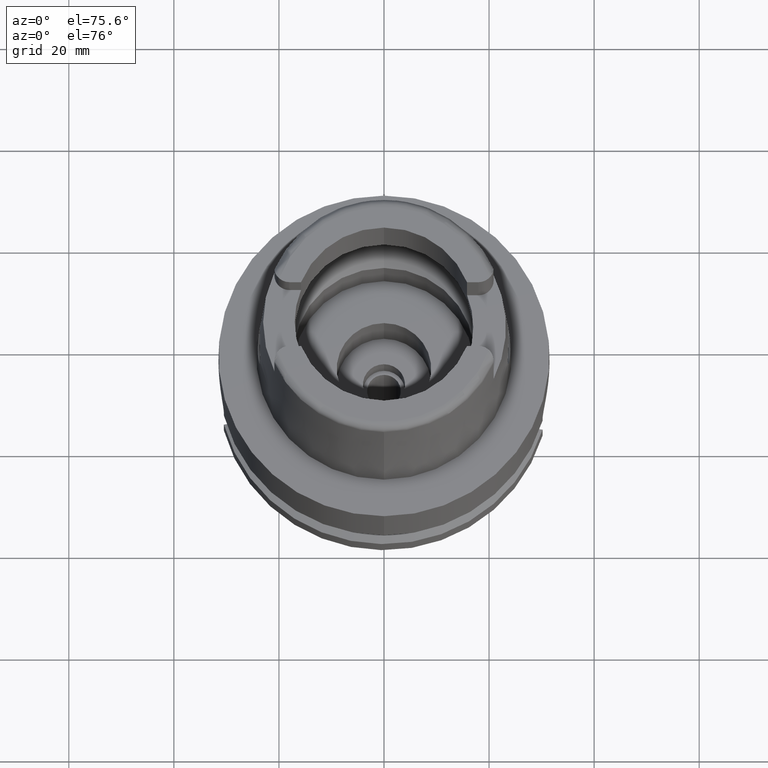
[diagram: clean part render]
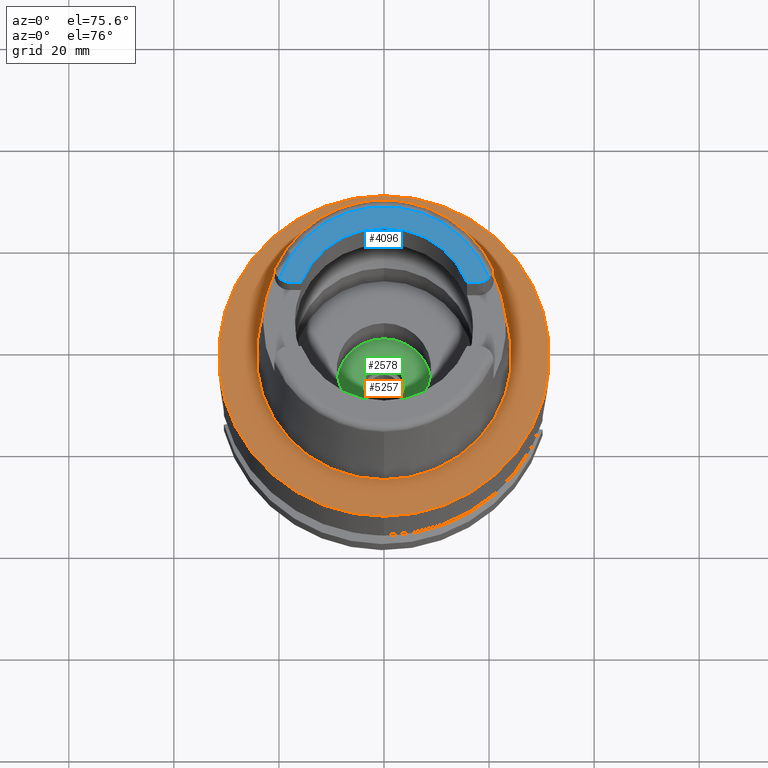
[diagram: same view with three faces highlighted in distinct colors, each labeled with its STEP entity id]
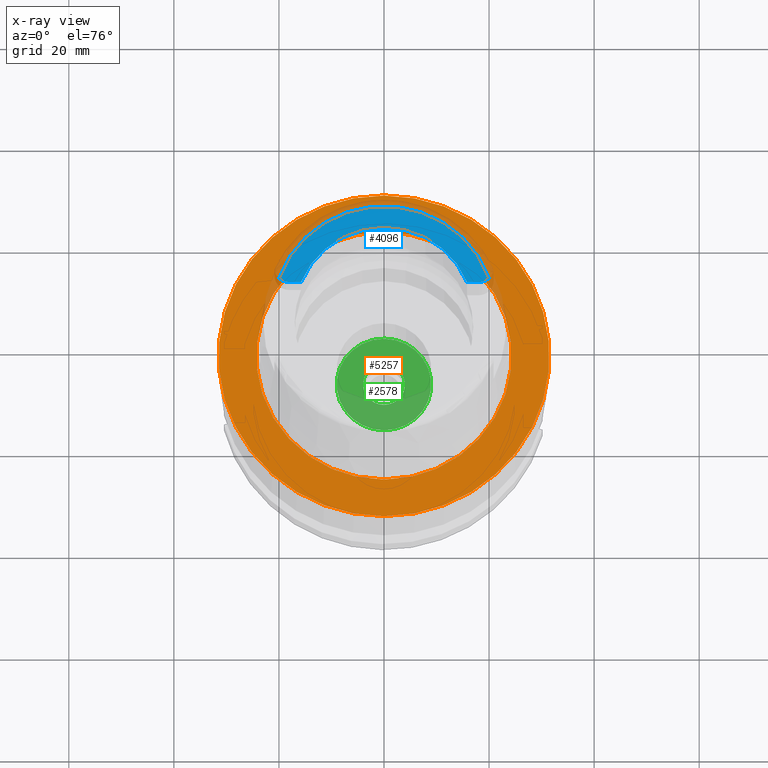
[diagram: x-ray of the same camera — body ghosted, the three highlighted faces saturated]
A machine part, auxiliary view with three faces highlighted in distinct colors.
The next image is the same camera in x-ray (body ghosted, the three faces saturated) — at least one of them is partly hidden behind the body in this view.
Their STEP definitions:

[orange] entity #5257 — the highlighted planar face has unit normal (0, 0, 1).
#267 = EDGE_CURVE ( 'NONE', #4974, #5223, #1328, .T. ) ;
#457 = DIRECTION ( 'NONE',  ( 1.000000000000000000, 0.0000000000000000000, 0.0000000000000000000 ) ) ;
#539 = CARTESIAN_POINT ( 'NONE',  ( 0.0000000000000000000, 0.0000000000000000000, -1.534772309241999973E-12 ) ) ;
#643 = CARTESIAN_POINT ( 'NONE',  ( 0.0000000000000000000, 0.0000000000000000000, -8.526512829120999020E-14 ) ) ;
#799 = CARTESIAN_POINT ( 'NONE',  ( 0.0000000000000000000, 31.50000000000000000, -2.842170943039999687E-14 ) ) ;
#809 = VERTEX_POINT ( 'NONE', #2963 ) ;
#1237 = CARTESIAN_POINT ( 'NONE',  ( 0.0000000000000000000, -31.50000000000000000, -8.526512829120999020E-14 ) ) ;
#1328 = CIRCLE ( 'NONE', #3477, 31.50000000000000000 ) ;
#1681 = ORIENTED_EDGE ( 'NONE', *, *, #3505, .F. ) ;
#1725 = DIRECTION ( 'NONE',  ( 0.0000000000000000000, 1.000000000000000000, 0.0000000000000000000 ) ) ;
#1851 = VERTEX_POINT ( 'NONE', #2541 ) ;
#1978 = AXIS2_PLACEMENT_3D ( 'NONE', #3338, #2180, #1725 ) ;
#2033 = ORIENTED_EDGE ( 'NONE', *, *, #267, .F. ) ;
#2111 = FACE_OUTER_BOUND ( 'NONE', #2906, .T. ) ;
#2112 = CIRCLE ( 'NONE', #4560, 24.31503482328999866 ) ;
#2137 = DIRECTION ( 'NONE',  ( 0.0000000000000000000, 0.0000000000000000000, -1.000000000000000000 ) ) ;
#2148 = EDGE_LOOP ( 'NONE', ( #3870, #3963 ) ) ;
#2169 = CARTESIAN_POINT ( 'NONE',  ( 0.0000000000000000000, 0.0000000000000000000, 0.0000000000000000000 ) ) ;
#2180 = DIRECTION ( 'NONE',  ( 0.0000000000000000000, 0.0000000000000000000, 1.000000000000000000 ) ) ;
#2333 = AXIS2_PLACEMENT_3D ( 'NONE', #3776, #2137, #3749 ) ;
#2541 = CARTESIAN_POINT ( 'NONE',  ( 0.0000000000000000000, 24.31503482328999866, -1.534772309241999973E-12 ) ) ;
#2906 = EDGE_LOOP ( 'NONE', ( #2033, #1681 ) ) ;
#2963 = CARTESIAN_POINT ( 'NONE',  ( 0.0000000000000000000, -24.31503482328999866, -8.704148513061000085E-13 ) ) ;
#3149 = CIRCLE ( 'NONE', #2333, 31.50000000000000000 ) ;
#3338 = CARTESIAN_POINT ( 'NONE',  ( 0.0000000000000000000, 0.0000000000000000000, -1.534772309241999973E-12 ) ) ;
#3434 = FACE_BOUND ( 'NONE', #2148, .T. ) ;
#3477 = AXIS2_PLACEMENT_3D ( 'NONE', #643, #4421, #3964 ) ;
#3505 = EDGE_CURVE ( 'NONE', #5223, #4974, #3149, .T. ) ;
#3547 = DIRECTION ( 'NONE',  ( 0.0000000000000000000, 0.0000000000000000000, 1.000000000000000000 ) ) ;
#3629 = AXIS2_PLACEMENT_3D ( 'NONE', #2169, #4300, #457 ) ;
#3749 = DIRECTION ( 'NONE',  ( 0.0000000000000000000, -1.000000000000000000, 0.0000000000000000000 ) ) ;
#3776 = CARTESIAN_POINT ( 'NONE',  ( 0.0000000000000000000, 0.0000000000000000000, -8.526512829120999020E-14 ) ) ;
#3870 = ORIENTED_EDGE ( 'NONE', *, *, #3924, .F. ) ;
#3924 = EDGE_CURVE ( 'NONE', #1851, #809, #4426, .T. ) ;
#3963 = ORIENTED_EDGE ( 'NONE', *, *, #4673, .F. ) ;
#3964 = DIRECTION ( 'NONE',  ( 0.0000000000000000000, 1.000000000000000000, 0.0000000000000000000 ) ) ;
#4300 = DIRECTION ( 'NONE',  ( 0.0000000000000000000, 0.0000000000000000000, 1.000000000000000000 ) ) ;
#4326 = PLANE ( 'NONE',  #3629 ) ;
#4421 = DIRECTION ( 'NONE',  ( 0.0000000000000000000, 0.0000000000000000000, -1.000000000000000000 ) ) ;
#4426 = CIRCLE ( 'NONE', #1978, 24.31503482328999866 ) ;
#4560 = AXIS2_PLACEMENT_3D ( 'NONE', #539, #3547, #5269 ) ;
#4673 = EDGE_CURVE ( 'NONE', #809, #1851, #2112, .T. ) ;
#4974 = VERTEX_POINT ( 'NONE', #799 ) ;
#5223 = VERTEX_POINT ( 'NONE', #1237 ) ;
#5257 = ADVANCED_FACE ( 'NONE', ( #2111, #3434 ), #4326, .T. ) ;
#5269 = DIRECTION ( 'NONE',  ( 0.0000000000000000000, -1.000000000000000000, 0.0000000000000000000 ) ) ;

[blue] entity #4096 — the highlighted planar face has unit normal (0, 0, 1).
#13 = EDGE_LOOP ( 'NONE', ( #3694, #1769, #2640, #1125, #2549, #4825, #635 ) ) ;
#23 = CARTESIAN_POINT ( 'NONE',  ( 15.80149043602999903, 6.270000000000000462, 32.00000000000000000 ) ) ;
#273 = VERTEX_POINT ( 'NONE', #3110 ) ;
#563 = EDGE_CURVE ( 'NONE', #3929, #2590, #3487, .T. ) ;
#635 = ORIENTED_EDGE ( 'NONE', *, *, #3236, .T. ) ;
#677 = DIRECTION ( 'NONE',  ( 0.9294994374136111848, 0.3688235294118045182, 0.0000000000000000000 ) ) ;
#711 = AXIS2_PLACEMENT_3D ( 'NONE', #2910, #4635, #677 ) ;
#728 = CIRCLE ( 'NONE', #3046, 17.00000000000000000 ) ;
#815 = CARTESIAN_POINT ( 'NONE',  ( 0.0000000000000000000, 0.0000000000000000000, 32.00000000000000000 ) ) ;
#892 = DIRECTION ( 'NONE',  ( 1.000000000000000000, 8.644330667353000255E-14, 0.0000000000000000000 ) ) ;
#1086 = CARTESIAN_POINT ( 'NONE',  ( 17.98999999999999844, 9.150000000000000355, 32.00000000000000000 ) ) ;
#1125 = ORIENTED_EDGE ( 'NONE', *, *, #1459, .F. ) ;
#1242 = DIRECTION ( 'NONE',  ( 1.000000000000000000, 0.0000000000000000000, 0.0000000000000000000 ) ) ;
#1304 = CIRCLE ( 'NONE', #2907, 2.880000000000000782 ) ;
#1313 = CARTESIAN_POINT ( 'NONE',  ( 17.98999999999999844, 6.270000000000000462, 32.00000000000000000 ) ) ;
#1380 = LINE ( 'NONE', #3083, #3685 ) ;
#1397 = DIRECTION ( 'NONE',  ( 0.0000000000000000000, 0.0000000000000000000, -1.000000000000000000 ) ) ;
#1459 = EDGE_CURVE ( 'NONE', #273, #4351, #4764, .T. ) ;
#1591 = CARTESIAN_POINT ( 'NONE',  ( 0.0000000000000000000, 0.0000000000000000000, 32.00000000000000000 ) ) ;
#1629 = CARTESIAN_POINT ( 'NONE',  ( 0.0000000000000000000, 0.0000000000000000000, 32.00000000000000000 ) ) ;
#1689 = PLANE ( 'NONE',  #4552 ) ;
#1691 = CARTESIAN_POINT ( 'NONE',  ( -17.98999999999999844, 6.270000000000000462, 32.00000000000000000 ) ) ;
#1696 = DIRECTION ( 'NONE',  ( 0.0000000000000000000, 0.0000000000000000000, 1.000000000000000000 ) ) ;
#1707 = EDGE_CURVE ( 'NONE', #2590, #5427, #728, .T. ) ;
#1722 = VERTEX_POINT ( 'NONE', #3735 ) ;
#1769 = ORIENTED_EDGE ( 'NONE', *, *, #563, .F. ) ;
#1784 = VECTOR ( 'NONE', #892, 1000.000000000000000 ) ;
#1863 = CARTESIAN_POINT ( 'NONE',  ( 0.0000000000000000000, 17.00000000000000000, 32.00000000000000000 ) ) ;
#2046 = EDGE_CURVE ( 'NONE', #3929, #4351, #1380, .T. ) ;
#2118 = DIRECTION ( 'NONE',  ( 0.0000000000000000000, 0.0000000000000000000, 1.000000000000000000 ) ) ;
#2302 = CARTESIAN_POINT ( 'NONE',  ( -15.80149043602999903, 6.270000000000000462, 32.00000000000000000 ) ) ;
#2351 = VERTEX_POINT ( 'NONE', #1691 ) ;
#2548 = AXIS2_PLACEMENT_3D ( 'NONE', #1629, #5462, #5158 ) ;
#2549 = ORIENTED_EDGE ( 'NONE', *, *, #4337, .F. ) ;
#2590 = VERTEX_POINT ( 'NONE', #1863 ) ;
#2640 = ORIENTED_EDGE ( 'NONE', *, *, #2046, .T. ) ;
#2907 = AXIS2_PLACEMENT_3D ( 'NONE', #4380, #1397, #3071 ) ;
#2910 = CARTESIAN_POINT ( 'NONE',  ( 0.0000000000000000000, 0.0000000000000000000, 32.00000000000000000 ) ) ;
#3019 = FACE_OUTER_BOUND ( 'NONE', #13, .T. ) ;
#3046 = AXIS2_PLACEMENT_3D ( 'NONE', #1591, #1696, #5446 ) ;
#3049 = CARTESIAN_POINT ( 'NONE',  ( -17.98999999999999844, 6.270000000000000462, 32.00000000000000000 ) ) ;
#3071 = DIRECTION ( 'NONE',  ( 0.0000000000000000000, -1.000000000000000000, 0.0000000000000000000 ) ) ;
#3083 = CARTESIAN_POINT ( 'NONE',  ( 15.80149043602999903, 6.270000000000000462, 32.00000000000000000 ) ) ;
#3096 = CIRCLE ( 'NONE', #2548, 21.14542314616000951 ) ;
#3110 = CARTESIAN_POINT ( 'NONE',  ( 19.94181952027000193, 7.032265229004000417, 32.00000000000000000 ) ) ;
#3236 = EDGE_CURVE ( 'NONE', #2351, #5427, #5217, .T. ) ;
#3403 = AXIS2_PLACEMENT_3D ( 'NONE', #1086, #5009, #4541 ) ;
#3487 = CIRCLE ( 'NONE', #711, 17.00000000000000000 ) ;
#3685 = VECTOR ( 'NONE', #4313, 1000.000000000000000 ) ;
#3694 = ORIENTED_EDGE ( 'NONE', *, *, #1707, .F. ) ;
#3735 = CARTESIAN_POINT ( 'NONE',  ( -19.94181952027000193, 7.032265229004000417, 32.00000000000000000 ) ) ;
#3929 = VERTEX_POINT ( 'NONE', #23 ) ;
#4096 = ADVANCED_FACE ( 'NONE', ( #3019 ), #1689, .T. ) ;
#4313 = DIRECTION ( 'NONE',  ( 1.000000000000000000, -8.522579531193000322E-14, 0.0000000000000000000 ) ) ;
#4337 = EDGE_CURVE ( 'NONE', #1722, #273, #3096, .T. ) ;
#4351 = VERTEX_POINT ( 'NONE', #1313 ) ;
#4380 = CARTESIAN_POINT ( 'NONE',  ( -17.98999999999999844, 9.150000000000000355, 32.00000000000000000 ) ) ;
#4541 = DIRECTION ( 'NONE',  ( 0.6777151112055670445, -0.7353245732624646980, 0.0000000000000000000 ) ) ;
#4552 = AXIS2_PLACEMENT_3D ( 'NONE', #815, #2118, #1242 ) ;
#4635 = DIRECTION ( 'NONE',  ( 0.0000000000000000000, 0.0000000000000000000, 1.000000000000000000 ) ) ;
#4764 = CIRCLE ( 'NONE', #3403, 2.880000000000001670 ) ;
#4825 = ORIENTED_EDGE ( 'NONE', *, *, #5437, .F. ) ;
#5009 = DIRECTION ( 'NONE',  ( 0.0000000000000000000, 0.0000000000000000000, -1.000000000000000000 ) ) ;
#5158 = DIRECTION ( 'NONE',  ( -0.9430797096105165700, 0.3325667772357058793, 0.0000000000000000000 ) ) ;
#5217 = LINE ( 'NONE', #3049, #1784 ) ;
#5427 = VERTEX_POINT ( 'NONE', #2302 ) ;
#5437 = EDGE_CURVE ( 'NONE', #2351, #1722, #1304, .T. ) ;
#5446 = DIRECTION ( 'NONE',  ( 0.0000000000000000000, 1.000000000000000000, 0.0000000000000000000 ) ) ;
#5462 = DIRECTION ( 'NONE',  ( 0.0000000000000000000, 0.0000000000000000000, -1.000000000000000000 ) ) ;

[green] entity #2578 — the highlighted planar face has unit normal (0, 0, 1).
#8 = CARTESIAN_POINT ( 'NONE',  ( 0.0000000000000000000, 9.000000000000000000, -21.94999999999999929 ) ) ;
#201 = EDGE_CURVE ( 'NONE', #4106, #782, #5008, .T. ) ;
#516 = CARTESIAN_POINT ( 'NONE',  ( 0.0000000000000000000, -4.000000000000000000, -21.94999999999999929 ) ) ;
#518 = AXIS2_PLACEMENT_3D ( 'NONE', #1293, #3354, #4636 ) ;
#686 = EDGE_CURVE ( 'NONE', #782, #4106, #1168, .T. ) ;
#782 = VERTEX_POINT ( 'NONE', #8 ) ;
#1017 = DIRECTION ( 'NONE',  ( 1.000000000000000000, 0.0000000000000000000, 0.0000000000000000000 ) ) ;
#1142 = EDGE_LOOP ( 'NONE', ( #4863, #4328 ) ) ;
#1168 = CIRCLE ( 'NONE', #4843, 9.000000000000000000 ) ;
#1291 = DIRECTION ( 'NONE',  ( 0.0000000000000000000, 1.000000000000000000, 0.0000000000000000000 ) ) ;
#1293 = CARTESIAN_POINT ( 'NONE',  ( 0.0000000000000000000, 0.0000000000000000000, -21.94999999999999929 ) ) ;
#1434 = DIRECTION ( 'NONE',  ( 0.0000000000000000000, -1.000000000000000000, 0.0000000000000000000 ) ) ;
#2062 = DIRECTION ( 'NONE',  ( 0.0000000000000000000, 0.0000000000000000000, -1.000000000000000000 ) ) ;
#2245 = EDGE_LOOP ( 'NONE', ( #3523, #2936 ) ) ;
#2382 = EDGE_CURVE ( 'NONE', #2582, #4365, #5281, .T. ) ;
#2578 = ADVANCED_FACE ( 'NONE', ( #3166, #3004 ), #4886, .T. ) ;
#2582 = VERTEX_POINT ( 'NONE', #516 ) ;
#2936 = ORIENTED_EDGE ( 'NONE', *, *, #201, .F. ) ;
#2974 = EDGE_CURVE ( 'NONE', #4365, #2582, #3031, .T. ) ;
#3004 = FACE_BOUND ( 'NONE', #1142, .T. ) ;
#3031 = CIRCLE ( 'NONE', #518, 4.000000000000000000 ) ;
#3142 = DIRECTION ( 'NONE',  ( 0.0000000000000000000, 0.0000000000000000000, -1.000000000000000000 ) ) ;
#3166 = FACE_OUTER_BOUND ( 'NONE', #2245, .T. ) ;
#3285 = AXIS2_PLACEMENT_3D ( 'NONE', #3825, #3142, #1434 ) ;
#3354 = DIRECTION ( 'NONE',  ( 0.0000000000000000000, 0.0000000000000000000, 1.000000000000000000 ) ) ;
#3443 = DIRECTION ( 'NONE',  ( 0.0000000000000000000, 0.0000000000000000000, 1.000000000000000000 ) ) ;
#3504 = CARTESIAN_POINT ( 'NONE',  ( 0.0000000000000000000, 0.0000000000000000000, -21.94999999999999929 ) ) ;
#3523 = ORIENTED_EDGE ( 'NONE', *, *, #686, .F. ) ;
#3570 = AXIS2_PLACEMENT_3D ( 'NONE', #3504, #3443, #5221 ) ;
#3825 = CARTESIAN_POINT ( 'NONE',  ( 0.0000000000000000000, 0.0000000000000000000, -21.94999999999999929 ) ) ;
#3932 = AXIS2_PLACEMENT_3D ( 'NONE', #5306, #5247, #1017 ) ;
#4106 = VERTEX_POINT ( 'NONE', #4252 ) ;
#4252 = CARTESIAN_POINT ( 'NONE',  ( 0.0000000000000000000, -9.000000000000000000, -21.94999999999999929 ) ) ;
#4328 = ORIENTED_EDGE ( 'NONE', *, *, #2382, .F. ) ;
#4365 = VERTEX_POINT ( 'NONE', #4708 ) ;
#4636 = DIRECTION ( 'NONE',  ( 0.0000000000000000000, 1.000000000000000000, 0.0000000000000000000 ) ) ;
#4708 = CARTESIAN_POINT ( 'NONE',  ( 0.0000000000000000000, 4.000000000000000000, -21.94999999999999929 ) ) ;
#4843 = AXIS2_PLACEMENT_3D ( 'NONE', #5522, #2062, #1291 ) ;
#4863 = ORIENTED_EDGE ( 'NONE', *, *, #2974, .F. ) ;
#4886 = PLANE ( 'NONE',  #3932 ) ;
#5008 = CIRCLE ( 'NONE', #3285, 9.000000000000000000 ) ;
#5221 = DIRECTION ( 'NONE',  ( 0.0000000000000000000, -1.000000000000000000, 0.0000000000000000000 ) ) ;
#5247 = DIRECTION ( 'NONE',  ( 0.0000000000000000000, 0.0000000000000000000, 1.000000000000000000 ) ) ;
#5281 = CIRCLE ( 'NONE', #3570, 4.000000000000000000 ) ;
#5306 = CARTESIAN_POINT ( 'NONE',  ( 0.0000000000000000000, 0.0000000000000000000, -21.94999999999999929 ) ) ;
#5522 = CARTESIAN_POINT ( 'NONE',  ( 0.0000000000000000000, 0.0000000000000000000, -21.94999999999999929 ) ) ;